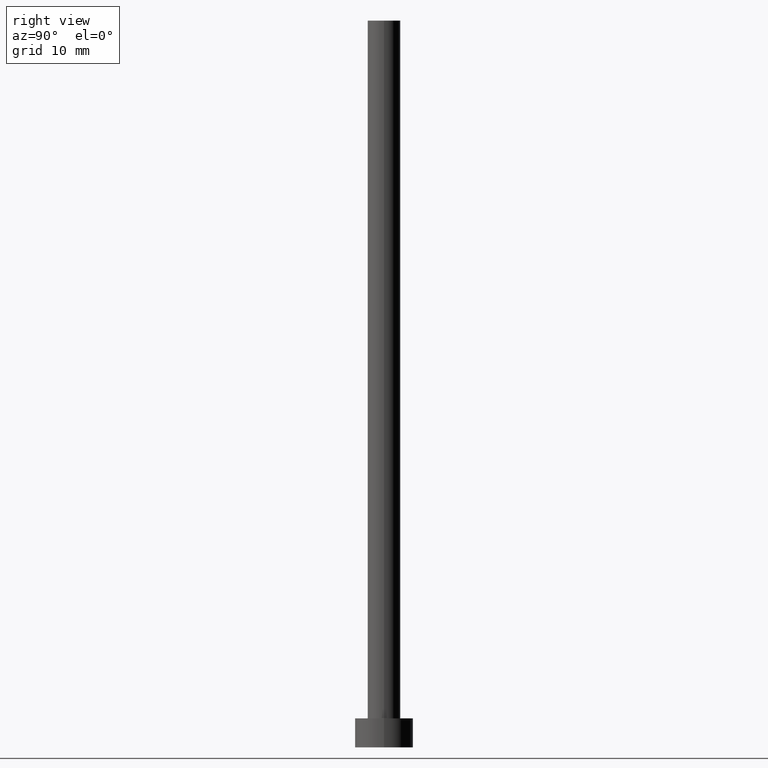
[diagram: clean part render]
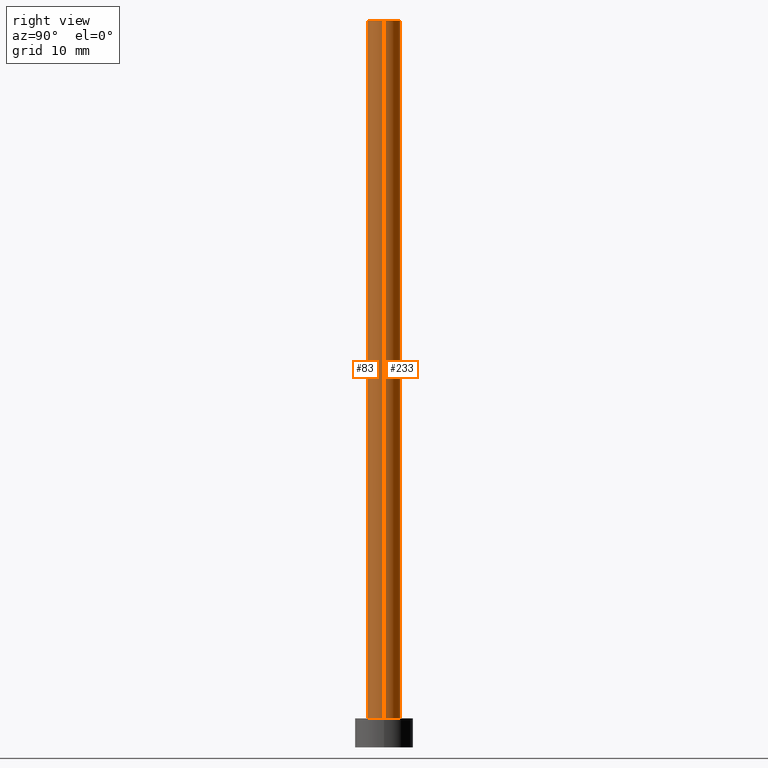
[diagram: same view with one multi-face feature highlighted, each face labeled with its STEP entity id]
A machine part, right view. The highlighted faces form ONE feature: a constant-radius fillet chain: 2 tangent blend faces with common blend radius 2.25 mm. The faces share edges in the B-rep.
Their STEP definitions:
[1] entity #233 (Cylinder):
#4 = CARTESIAN_POINT ( 'NONE',  ( 0.000000000000000000, 0.000000000000000000, 4.000000000000000000 ) ) ;
#9 = VERTEX_POINT ( 'NONE', #186 ) ;
#14 = DIRECTION ( 'NONE',  ( -1.000000000000000000, 0.000000000000000000, 0.000000000000000000 ) ) ;
#20 = VECTOR ( 'NONE', #33, 1000.000000000000000 ) ;
#30 = VERTEX_POINT ( 'NONE', #87 ) ;
#33 = DIRECTION ( 'NONE',  ( -0.000000000000000000, -0.000000000000000000, -1.000000000000000000 ) ) ;
#35 = EDGE_CURVE ( 'NONE', #246, #30, #163, .T. ) ;
#51 = CARTESIAN_POINT ( 'NONE',  ( 0.000000000000000000, 0.000000000000000000, 100.0000000000000000 ) ) ;
#53 = EDGE_CURVE ( 'NONE', #9, #30, #90, .T. ) ;
#57 = AXIS2_PLACEMENT_3D ( 'NONE', #4, #133, #64 ) ;
#58 = CARTESIAN_POINT ( 'NONE',  ( 2.250000000000000000, 2.755455298081544285E-16, 4.000000000000000000 ) ) ;
#64 = DIRECTION ( 'NONE',  ( 1.000000000000000000, 0.000000000000000000, 0.000000000000000000 ) ) ;
#68 = ORIENTED_EDGE ( 'NONE', *, *, #35, .T. ) ;
#72 = ORIENTED_EDGE ( 'NONE', *, *, #196, .F. ) ;
#73 = AXIS2_PLACEMENT_3D ( 'NONE', #251, #136, #194 ) ;
#82 = LINE ( 'NONE', #98, #20 ) ;
#84 = ORIENTED_EDGE ( 'NONE', *, *, #153, .T. ) ;
#86 = DIRECTION ( 'NONE',  ( -0.000000000000000000, -0.000000000000000000, -1.000000000000000000 ) ) ;
#87 = CARTESIAN_POINT ( 'NONE',  ( -2.250000000000000000, 0.000000000000000000, 4.000000000000000000 ) ) ;
#90 = LINE ( 'NONE', #169, #125 ) ;
#98 = CARTESIAN_POINT ( 'NONE',  ( 2.250000000000000000, 2.755455298081544285E-16, 100.0000000000000000 ) ) ;
#102 = CARTESIAN_POINT ( 'NONE',  ( 2.250000000000000000, 2.755455298081544285E-16, 100.0000000000000000 ) ) ;
#105 = EDGE_LOOP ( 'NONE', ( #72, #84, #68, #187 ) ) ;
#115 = DIRECTION ( 'NONE',  ( -0.000000000000000000, -0.000000000000000000, -1.000000000000000000 ) ) ;
#125 = VECTOR ( 'NONE', #86, 1000.000000000000000 ) ;
#127 = AXIS2_PLACEMENT_3D ( 'NONE', #51, #115, #14 ) ;
#133 = DIRECTION ( 'NONE',  ( 0.000000000000000000, 0.000000000000000000, 1.000000000000000000 ) ) ;
#136 = DIRECTION ( 'NONE',  ( 0.000000000000000000, 0.000000000000000000, 1.000000000000000000 ) ) ;
#153 = EDGE_CURVE ( 'NONE', #228, #246, #82, .T. ) ;
#163 = CIRCLE ( 'NONE', #57, 2.250000000000000000 ) ;
#169 = CARTESIAN_POINT ( 'NONE',  ( -2.250000000000000000, 0.000000000000000000, 100.0000000000000000 ) ) ;
#177 = CYLINDRICAL_SURFACE ( 'NONE', #127, 2.250000000000000000 ) ;
#186 = CARTESIAN_POINT ( 'NONE',  ( -2.250000000000000000, 0.000000000000000000, 100.0000000000000000 ) ) ;
#187 = ORIENTED_EDGE ( 'NONE', *, *, #53, .F. ) ;
#191 = FACE_OUTER_BOUND ( 'NONE', #105, .T. ) ;
#194 = DIRECTION ( 'NONE',  ( 1.000000000000000000, 0.000000000000000000, 0.000000000000000000 ) ) ;
#196 = EDGE_CURVE ( 'NONE', #228, #9, #206, .T. ) ;
#206 = CIRCLE ( 'NONE', #73, 2.250000000000000000 ) ;
#228 = VERTEX_POINT ( 'NONE', #102 ) ;
#233 = ADVANCED_FACE ( 'NONE', ( #191 ), #177, .T. ) ;
#246 = VERTEX_POINT ( 'NONE', #58 ) ;
#251 = CARTESIAN_POINT ( 'NONE',  ( 0.000000000000000000, 0.000000000000000000, 100.0000000000000000 ) ) ;
[2] entity #83 (Cylinder):
#7 = DIRECTION ( 'NONE',  ( 1.000000000000000000, 0.000000000000000000, 0.000000000000000000 ) ) ;
#9 = VERTEX_POINT ( 'NONE', #186 ) ;
#17 = EDGE_CURVE ( 'NONE', #9, #228, #34, .T. ) ;
#18 = DIRECTION ( 'NONE',  ( 0.000000000000000000, 0.000000000000000000, 1.000000000000000000 ) ) ;
#20 = VECTOR ( 'NONE', #33, 1000.000000000000000 ) ;
#27 = ORIENTED_EDGE ( 'NONE', *, *, #53, .T. ) ;
#29 = DIRECTION ( 'NONE',  ( -0.000000000000000000, -0.000000000000000000, -1.000000000000000000 ) ) ;
#30 = VERTEX_POINT ( 'NONE', #87 ) ;
#33 = DIRECTION ( 'NONE',  ( -0.000000000000000000, -0.000000000000000000, -1.000000000000000000 ) ) ;
#34 = CIRCLE ( 'NONE', #234, 2.250000000000000000 ) ;
#49 = CARTESIAN_POINT ( 'NONE',  ( 0.000000000000000000, 0.000000000000000000, 100.0000000000000000 ) ) ;
#50 = CARTESIAN_POINT ( 'NONE',  ( 0.000000000000000000, 0.000000000000000000, 100.0000000000000000 ) ) ;
#53 = EDGE_CURVE ( 'NONE', #9, #30, #90, .T. ) ;
#58 = CARTESIAN_POINT ( 'NONE',  ( 2.250000000000000000, 2.755455298081544285E-16, 4.000000000000000000 ) ) ;
#74 = CARTESIAN_POINT ( 'NONE',  ( 0.000000000000000000, 0.000000000000000000, 4.000000000000000000 ) ) ;
#79 = AXIS2_PLACEMENT_3D ( 'NONE', #49, #29, #165 ) ;
#82 = LINE ( 'NONE', #98, #20 ) ;
#83 = ADVANCED_FACE ( 'NONE', ( #226 ), #240, .T. ) ;
#86 = DIRECTION ( 'NONE',  ( -0.000000000000000000, -0.000000000000000000, -1.000000000000000000 ) ) ;
#87 = CARTESIAN_POINT ( 'NONE',  ( -2.250000000000000000, 0.000000000000000000, 4.000000000000000000 ) ) ;
#90 = LINE ( 'NONE', #169, #125 ) ;
#98 = CARTESIAN_POINT ( 'NONE',  ( 2.250000000000000000, 2.755455298081544285E-16, 100.0000000000000000 ) ) ;
#102 = CARTESIAN_POINT ( 'NONE',  ( 2.250000000000000000, 2.755455298081544285E-16, 100.0000000000000000 ) ) ;
#125 = VECTOR ( 'NONE', #86, 1000.000000000000000 ) ;
#126 = ORIENTED_EDGE ( 'NONE', *, *, #17, .F. ) ;
#135 = AXIS2_PLACEMENT_3D ( 'NONE', #74, #18, #209 ) ;
#140 = EDGE_CURVE ( 'NONE', #30, #246, #179, .T. ) ;
#150 = ORIENTED_EDGE ( 'NONE', *, *, #140, .T. ) ;
#153 = EDGE_CURVE ( 'NONE', #228, #246, #82, .T. ) ;
#165 = DIRECTION ( 'NONE',  ( -1.000000000000000000, 0.000000000000000000, 0.000000000000000000 ) ) ;
#169 = CARTESIAN_POINT ( 'NONE',  ( -2.250000000000000000, 0.000000000000000000, 100.0000000000000000 ) ) ;
#179 = CIRCLE ( 'NONE', #135, 2.250000000000000000 ) ;
#186 = CARTESIAN_POINT ( 'NONE',  ( -2.250000000000000000, 0.000000000000000000, 100.0000000000000000 ) ) ;
#188 = DIRECTION ( 'NONE',  ( 0.000000000000000000, 0.000000000000000000, 1.000000000000000000 ) ) ;
#205 = ORIENTED_EDGE ( 'NONE', *, *, #153, .F. ) ;
#209 = DIRECTION ( 'NONE',  ( 1.000000000000000000, 0.000000000000000000, 0.000000000000000000 ) ) ;
#226 = FACE_OUTER_BOUND ( 'NONE', #243, .T. ) ;
#228 = VERTEX_POINT ( 'NONE', #102 ) ;
#234 = AXIS2_PLACEMENT_3D ( 'NONE', #50, #188, #7 ) ;
#240 = CYLINDRICAL_SURFACE ( 'NONE', #79, 2.250000000000000000 ) ;
#243 = EDGE_LOOP ( 'NONE', ( #205, #126, #27, #150 ) ) ;
#246 = VERTEX_POINT ( 'NONE', #58 ) ;